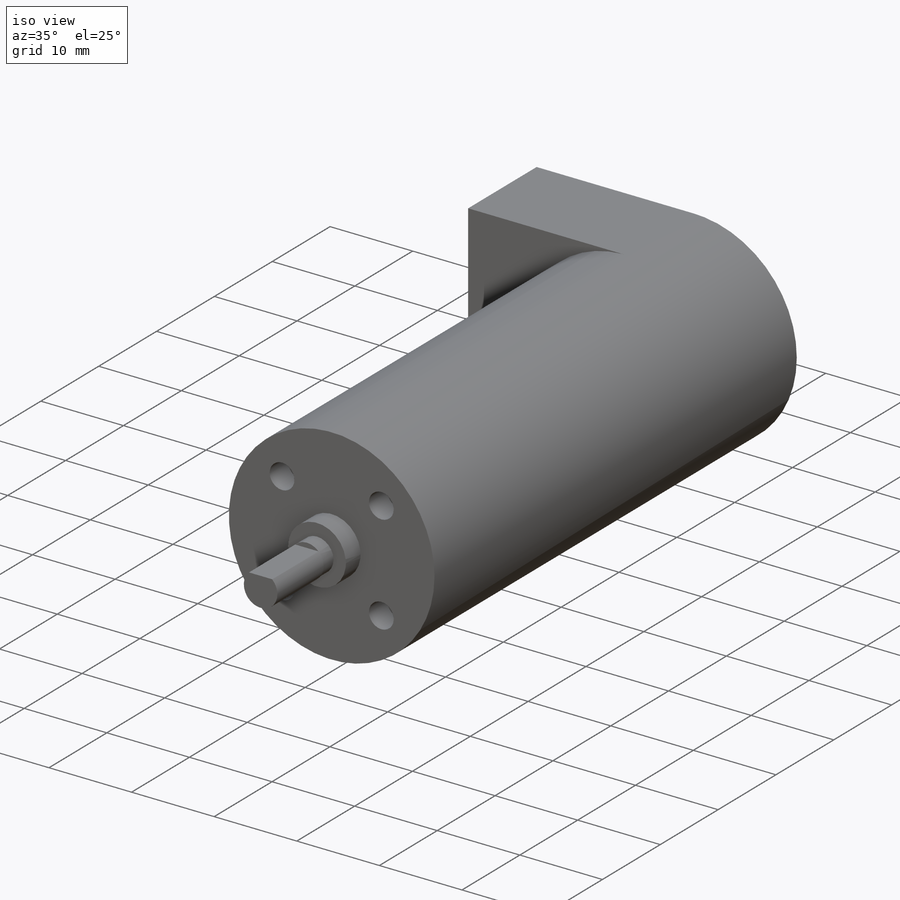
[diagram: iso view]
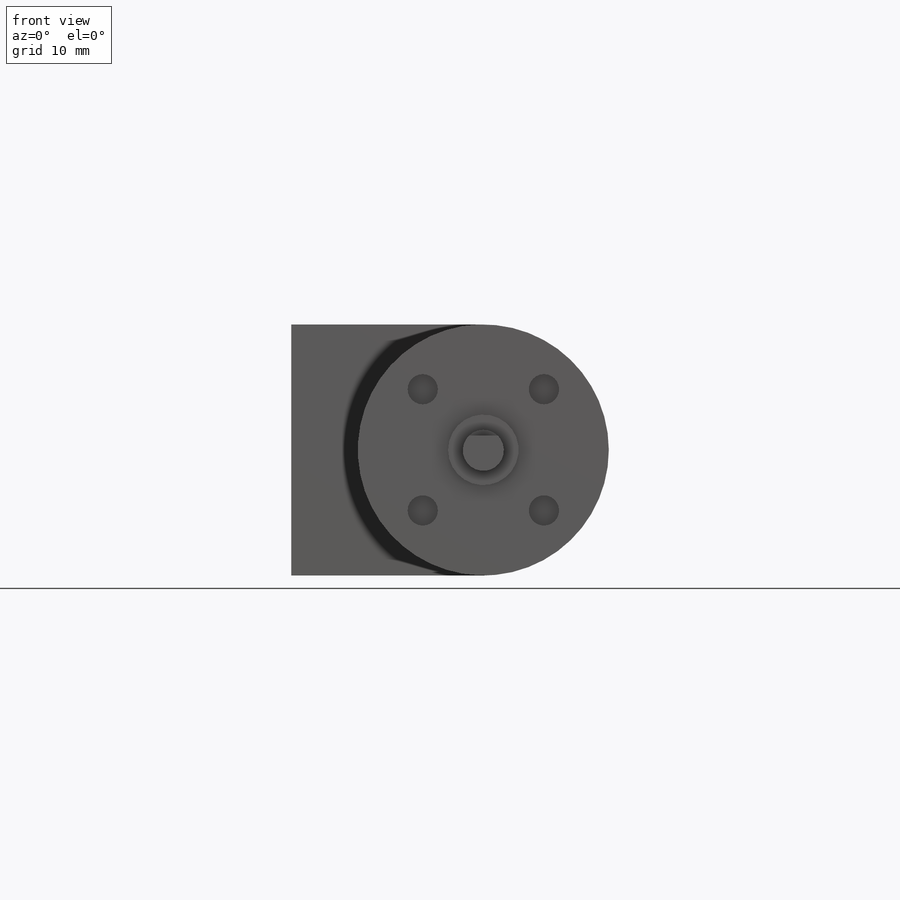
[diagram: front view]
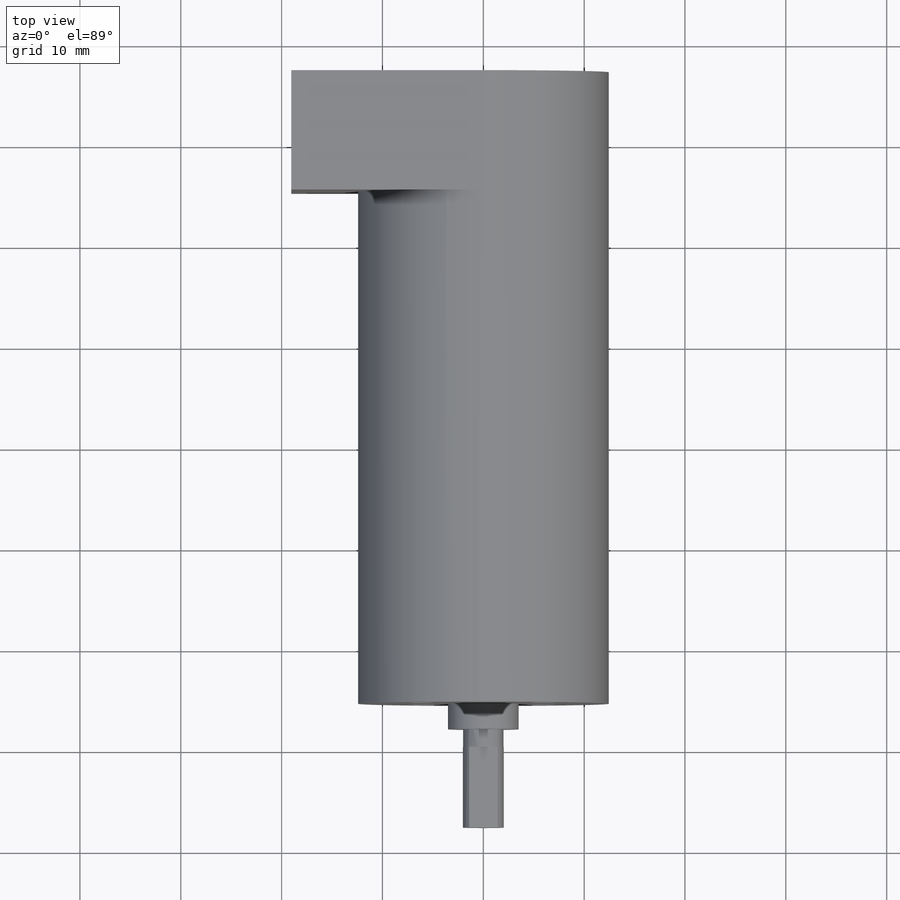
[diagram: top view]
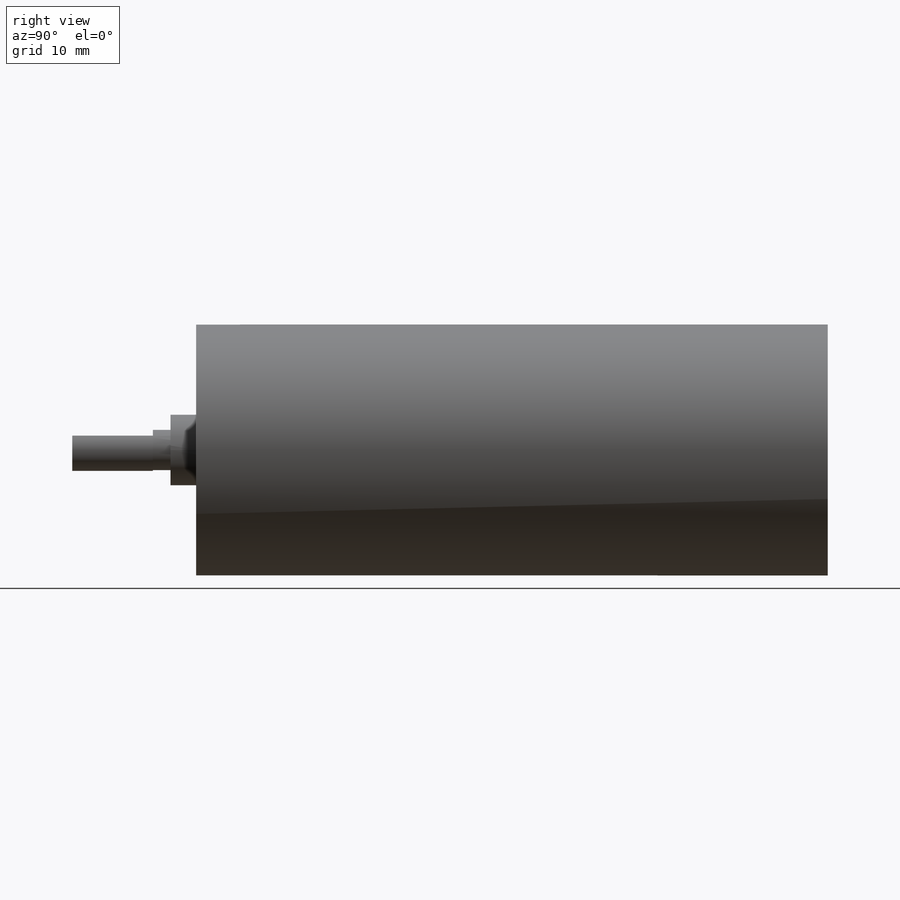
[diagram: right view]
SOLIDWORKS PART (.sldprt)
format: sldprt  version: not decoded by parser v0  size: 244,224 bytes
history: native  units: mm
features: sketch x6, extrude x5, material x1, cut_extrude x1 (+11 scaffold rows collapsed)
feature tree (24):
  scaffold x11  (default folders/planes/origin — collapsed)
  material  "Material <not specified>"
  sketch  "Sketch1"  dims[D1=24.892mm]
  extrude  "Boss-Extrude1"  Depth=25.4mm
  sketch  "Sketch2"  dims[D1=7.0mm]
  extrude  "Boss-Extrude2"  Depth=2.54mm
  sketch  "Sketch4"  dims[D1=4.0mm]
  extrude  "Boss-Extrude3"  Depth=1.75mm
  sketch  "Sketch5"  dims[D1=1.47mm]
  extrude  "Boss-Extrude4"  Depth=8mm
  sketch  "Sketch6"  dims[D2=3.0mm D1=8.5mm]
  cut_extrude  "Cut-Extrude1"  Depth=3.175mm
  sketch  "Sketch7"  dims[D1=19.05mm D2=24.892mm D3=12.446mm]
  extrude  "Boss-Extrude5"  Depth=11.8364mm
decode coverage: 12 of 12 modeling features carry decoded parameters
note: suppression state not decoded; provenance and decode notes live in map.json
